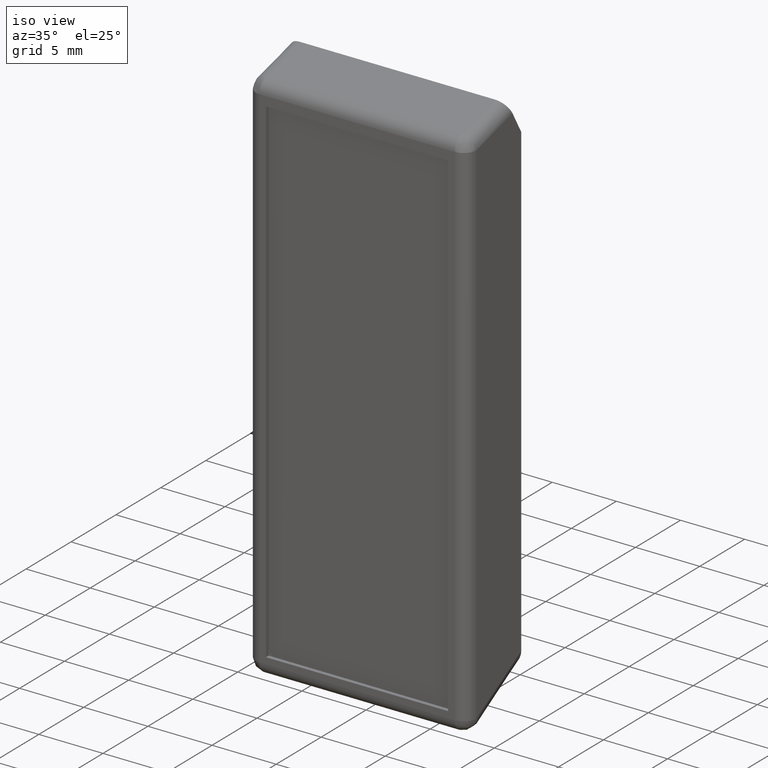
[diagram: clean part render]
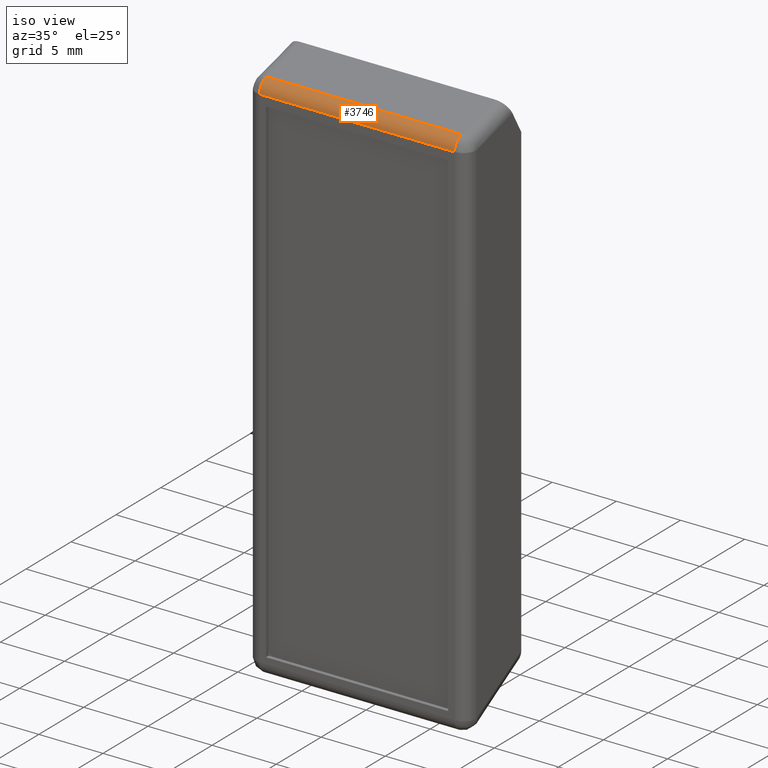
[diagram: same view with one face highlighted and labeled with its STEP entity id]
A machine part, iso view. The second image highlights one B-rep face of the part: STEP entity #3746.
In plain terms, the highlighted face is a freeform B-spline surface patch.
Its self-contained STEP definition (entity closure, byte-faithful):
#3471=CARTESIAN_POINT('',(-7.600000000000000,-6.0,41.026854700937548));
#3472=VERTEX_POINT('',#3471);
#3582=CARTESIAN_POINT('',(-7.600000000000000,-5.258830300683109,41.992777511232603));
#3583=VERTEX_POINT('',#3582);
#3584=CARTESIAN_POINT('',(-7.600000000000000,-6.0,41.026854700937548));
#3585=CARTESIAN_POINT('',(-7.600000000000001,-6.000000000000001,41.794172432144762));
#3586=CARTESIAN_POINT('',(-7.600000000000000,-5.258830300683109,41.992777511232603));
#3594=(BOUNDED_CURVE()B_SPLINE_CURVE(2,(#3584,#3585,#3586),.UNSPECIFIED.,.F.,.U.)CURVE()GEOMETRIC_REPRESENTATION_ITEM()QUASI_UNIFORM_CURVE()RATIONAL_B_SPLINE_CURVE((1.0,0.793356887120516,1.0))REPRESENTATION_ITEM(''));
#3595=EDGE_CURVE('',#3472,#3583,#3594,.T.);
#3675=CARTESIAN_POINT('',(7.600000000000000,-6.0,41.026854700937548));
#3676=VERTEX_POINT('',#3675);
#3704=CARTESIAN_POINT('',(7.980000000000000,-5.233445363855905,41.999224621335223));
#3705=CARTESIAN_POINT('',(-7.989500000000001,-5.233445363855905,41.999224621335223));
#3706=CARTESIAN_POINT('',(7.980000000000000,-6.049067358628053,41.803411104951870));
#3707=CARTESIAN_POINT('',(-7.989500000000002,-6.049067358628053,41.803411104951870));
#3708=CARTESIAN_POINT('',(7.980000000000000,-5.998156347109157,40.966159505693561));
#3709=CARTESIAN_POINT('',(-7.989500000000001,-5.998156347109157,40.966159505693561));
#3717=(BOUNDED_SURFACE()B_SPLINE_SURFACE(1,2,((#3704,#3706,#3708),(#3705,#3707,#3709)),.UNSPECIFIED.,.F.,.F.,.U.)B_SPLINE_SURFACE_WITH_KNOTS((2,2),(3,3),(0.0,15.969500000000000),(0.0,0.986334965366032),.UNSPECIFIED.)GEOMETRIC_REPRESENTATION_ITEM()RATIONAL_B_SPLINE_SURFACE(((1.0,0.763680026378198,0.993541358751519),(1.0,0.763680026378198,0.993541358751519)))REPRESENTATION_ITEM('')SURFACE());
#3718=CARTESIAN_POINT('',(7.600000000000000,-5.258830300683109,41.992777511232603));
#3719=VERTEX_POINT('',#3718);
#3720=CARTESIAN_POINT('',(7.600000000000000,-6.0,41.026854700937548));
#3721=CARTESIAN_POINT('',(7.600000000000000,-6.0,41.794172432144769));
#3722=CARTESIAN_POINT('',(7.600000000000000,-5.258830300683109,41.992777511232603));
#3730=(BOUNDED_CURVE()B_SPLINE_CURVE(2,(#3720,#3721,#3722),.UNSPECIFIED.,.F.,.U.)CURVE()GEOMETRIC_REPRESENTATION_ITEM()QUASI_UNIFORM_CURVE()RATIONAL_B_SPLINE_CURVE((1.0,0.793356887120515,1.0))REPRESENTATION_ITEM(''));
#3731=EDGE_CURVE('',#3676,#3719,#3730,.T.);
#3732=ORIENTED_EDGE('',*,*,#3731,.T.);
#3733=CARTESIAN_POINT('',(-7.600000000000000,-5.258830300683109,41.992777511232603));
#3734=CARTESIAN_POINT('',(7.600000000000000,-5.258830300683109,41.992777511232603));
#3735=QUASI_UNIFORM_CURVE('',1,(#3733,#3734),.UNSPECIFIED.,.F.,.U.);
#3736=EDGE_CURVE('',#3583,#3719,#3735,.T.);
#3737=ORIENTED_EDGE('',*,*,#3736,.F.);
#3738=ORIENTED_EDGE('',*,*,#3595,.F.);
#3739=CARTESIAN_POINT('',(7.600000000000000,-6.0,41.026854700937548));
#3740=CARTESIAN_POINT('',(-7.600000000000000,-6.0,41.026854700937548));
#3741=QUASI_UNIFORM_CURVE('',1,(#3739,#3740),.UNSPECIFIED.,.F.,.U.);
#3742=EDGE_CURVE('',#3676,#3472,#3741,.T.);
#3743=ORIENTED_EDGE('',*,*,#3742,.F.);
#3744=EDGE_LOOP('',(#3732,#3737,#3738,#3743));
#3745=FACE_OUTER_BOUND('',#3744,.T.);
#3746=ADVANCED_FACE('',(#3745),#3717,.T.);